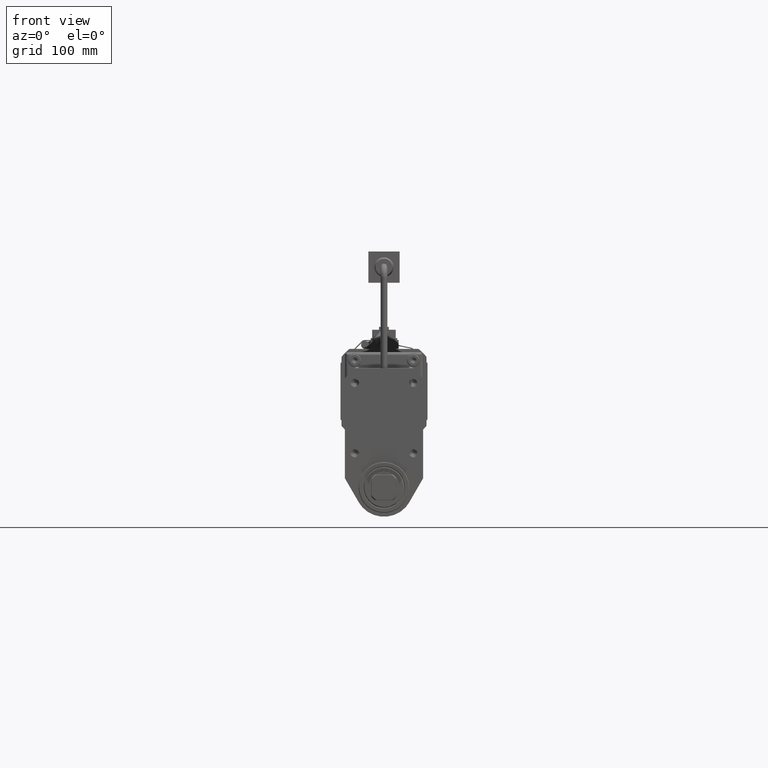
[diagram: clean part render]
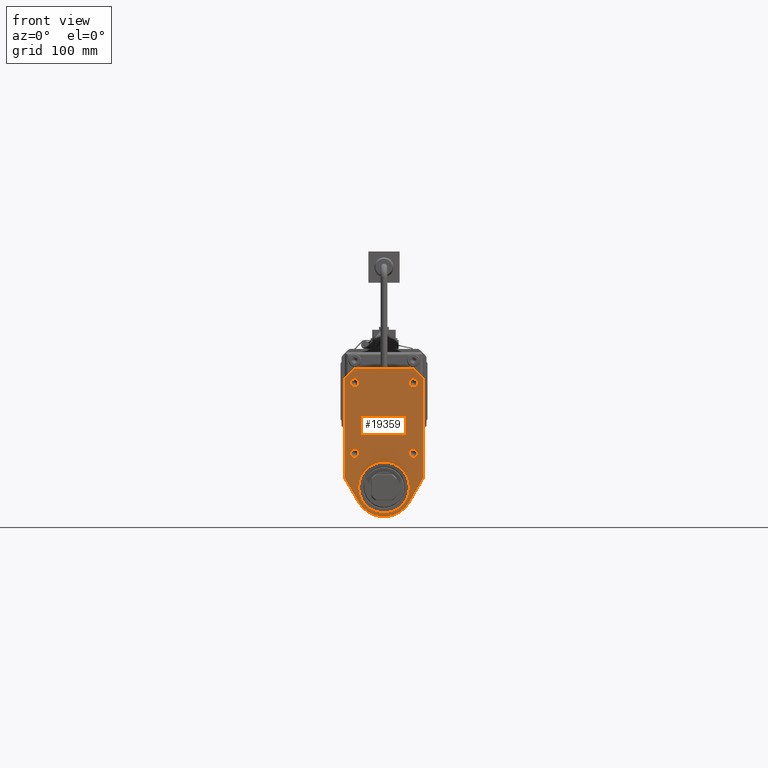
[diagram: same view with one face highlighted and labeled with its STEP entity id]
A machine part, front view. The second image highlights one B-rep face of the part: STEP entity #19359.
In plain terms, the highlighted planar face has unit normal (0, -1, 0).
Its self-contained STEP definition (entity closure, byte-faithful):
#221=PLANE('',#20762);
#765=FACE_BOUND('',#2767,.T.);
#766=FACE_BOUND('',#2768,.T.);
#767=FACE_BOUND('',#2769,.T.);
#768=FACE_BOUND('',#2770,.T.);
#769=FACE_BOUND('',#2771,.T.);
#1633=FACE_OUTER_BOUND('',#2766,.T.);
#2766=EDGE_LOOP('',(#14398,#14399,#14400,#14401,#14402,#14403,#14404,#14405));
#2767=EDGE_LOOP('',(#14406));
#2768=EDGE_LOOP('',(#14407));
#2769=EDGE_LOOP('',(#14408));
#2770=EDGE_LOOP('',(#14409));
#2771=EDGE_LOOP('',(#14410));
#3866=CIRCLE('',#20706,4.25);
#3868=CIRCLE('',#20709,4.25);
#3870=CIRCLE('',#20712,4.25);
#3872=CIRCLE('',#20715,4.25);
#3890=CIRCLE('',#20743,26.);
#3892=CIRCLE('',#20761,30.);
#4801=LINE('',#30473,#6559);
#4804=LINE('',#30478,#6562);
#4806=LINE('',#30483,#6564);
#4808=LINE('',#30487,#6566);
#4812=LINE('',#30494,#6570);
#4817=LINE('',#30504,#6575);
#4818=LINE('',#30507,#6576);
#6559=VECTOR('',#23643,10.);
#6562=VECTOR('',#23648,10.);
#6564=VECTOR('',#23652,10.);
#6566=VECTOR('',#23656,10.);
#6570=VECTOR('',#23664,10.);
#6575=VECTOR('',#23677,10.);
#6576=VECTOR('',#23682,10.);
#8477=VERTEX_POINT('',#30348);
#8479=VERTEX_POINT('',#30354);
#8481=VERTEX_POINT('',#30360);
#8483=VERTEX_POINT('',#30366);
#8515=VERTEX_POINT('',#30459);
#8516=VERTEX_POINT('',#30470);
#8517=VERTEX_POINT('',#30472);
#8518=VERTEX_POINT('',#30476);
#8519=VERTEX_POINT('',#30480);
#8520=VERTEX_POINT('',#30482);
#8521=VERTEX_POINT('',#30486);
#8522=VERTEX_POINT('',#30493);
#8523=VERTEX_POINT('',#30502);
#10626=EDGE_CURVE('',#8477,#8477,#3866,.T.);
#10629=EDGE_CURVE('',#8479,#8479,#3868,.T.);
#10632=EDGE_CURVE('',#8481,#8481,#3870,.T.);
#10635=EDGE_CURVE('',#8483,#8483,#3872,.T.);
#10674=EDGE_CURVE('',#8515,#8515,#3890,.T.);
#10681=EDGE_CURVE('',#8516,#8517,#4801,.T.);
#10684=EDGE_CURVE('',#8516,#8518,#4804,.T.);
#10686=EDGE_CURVE('',#8519,#8520,#4806,.T.);
#10688=EDGE_CURVE('',#8521,#8520,#4808,.T.);
#10692=EDGE_CURVE('',#8522,#8521,#4812,.T.);
#10697=EDGE_CURVE('',#8518,#8523,#4817,.T.);
#10698=EDGE_CURVE('',#8519,#8517,#4818,.T.);
#10701=EDGE_CURVE('',#8523,#8522,#3892,.T.);
#14398=ORIENTED_EDGE('',*,*,#10681,.F.);
#14399=ORIENTED_EDGE('',*,*,#10684,.T.);
#14400=ORIENTED_EDGE('',*,*,#10697,.T.);
#14401=ORIENTED_EDGE('',*,*,#10701,.T.);
#14402=ORIENTED_EDGE('',*,*,#10692,.T.);
#14403=ORIENTED_EDGE('',*,*,#10688,.T.);
#14404=ORIENTED_EDGE('',*,*,#10686,.F.);
#14405=ORIENTED_EDGE('',*,*,#10698,.T.);
#14406=ORIENTED_EDGE('',*,*,#10626,.T.);
#14407=ORIENTED_EDGE('',*,*,#10629,.T.);
#14408=ORIENTED_EDGE('',*,*,#10632,.T.);
#14409=ORIENTED_EDGE('',*,*,#10635,.T.);
#14410=ORIENTED_EDGE('',*,*,#10674,.T.);
#19359=ADVANCED_FACE('',(#1633,#765,#766,#767,#768,#769),#221,.T.);
#20706=AXIS2_PLACEMENT_3D('',#30349,#23531,#23532);
#20709=AXIS2_PLACEMENT_3D('',#30355,#23538,#23539);
#20712=AXIS2_PLACEMENT_3D('',#30361,#23545,#23546);
#20715=AXIS2_PLACEMENT_3D('',#30367,#23552,#23553);
#20743=AXIS2_PLACEMENT_3D('',#30460,#23627,#23628);
#20761=AXIS2_PLACEMENT_3D('',#30512,#23688,#23689);
#20762=AXIS2_PLACEMENT_3D('',#30513,#23690,#23691);
#23531=DIRECTION('center_axis',(-2.7315743099109E-16,1.,0.));
#23532=DIRECTION('ref_axis',(1.,2.7315743099109E-16,0.));
#23538=DIRECTION('center_axis',(-2.7315743099109E-16,1.,0.));
#23539=DIRECTION('ref_axis',(1.,2.7315743099109E-16,0.));
#23545=DIRECTION('center_axis',(-2.7315743099109E-16,1.,0.));
#23546=DIRECTION('ref_axis',(1.,2.7315743099109E-16,0.));
#23552=DIRECTION('center_axis',(-2.7315743099109E-16,1.,0.));
#23553=DIRECTION('ref_axis',(1.,2.7315743099109E-16,0.));
#23627=DIRECTION('center_axis',(-2.7315743099109E-16,1.,0.));
#23628=DIRECTION('ref_axis',(1.,2.7315743099109E-16,0.));
#23643=DIRECTION('',(0.707106781186547,1.93151471785296E-16,0.707106781186548));
#23648=DIRECTION('',(0.,0.,-1.));
#23652=DIRECTION('',(0.707106781186548,1.93151471785296E-16,-0.707106781186548));
#23656=DIRECTION('',(0.,0.,1.));
#23664=DIRECTION('',(0.5,1.36578715495545E-16,0.866025403784439));
#23677=DIRECTION('',(0.5,1.36578715495545E-16,-0.866025403784439));
#23682=DIRECTION('',(-1.,-2.7315743099109E-16,-5.08869889019998E-16));
#23688=DIRECTION('center_axis',(2.7315743099109E-16,-1.,0.));
#23689=DIRECTION('ref_axis',(0.866025403784439,2.9302288554416E-16,0.5));
#23690=DIRECTION('center_axis',(2.7315743099109E-16,-1.,0.));
#23691=DIRECTION('ref_axis',(0.,0.,-1.));
#30348=CARTESIAN_POINT('',(25.75,4.66293670342566E-14,35.));
#30349=CARTESIAN_POINT('Origin',(30.,4.88498130835069E-14,35.));
#30354=CARTESIAN_POINT('',(-34.25,3.10862446895044E-14,107.));
#30355=CARTESIAN_POINT('Origin',(-30.,3.33066907387547E-14,107.));
#30360=CARTESIAN_POINT('',(-34.25,3.10862446895044E-14,35.));
#30361=CARTESIAN_POINT('Origin',(-30.,3.33066907387547E-14,35.));
#30366=CARTESIAN_POINT('',(25.75,4.66293670342566E-14,107.));
#30367=CARTESIAN_POINT('Origin',(30.,4.88498130835069E-14,107.));
#30459=CARTESIAN_POINT('',(26.,1.33226762955019E-14,-3.18408167778312E-15));
#30460=CARTESIAN_POINT('Origin',(-3.673379795321E-15,8.88178419700125E-15,
0.));
#30470=CARTESIAN_POINT('',(-40.,3.00473174090199E-14,112.));
#30472=CARTESIAN_POINT('',(-30.,3.27788917189308E-14,122.));
#30473=CARTESIAN_POINT('',(-93.,1.55699735664922E-14,59.));
#30476=CARTESIAN_POINT('',(-40.,3.00473174090199E-14,9.2820323027551));
#30478=CARTESIAN_POINT('',(-40.,3.00473174090199E-14,61.));
#30480=CARTESIAN_POINT('',(30.,4.91683375783962E-14,122.));
#30482=CARTESIAN_POINT('',(40.,5.18999118883072E-14,112.));
#30483=CARTESIAN_POINT('',(18.,4.58904484065032E-14,134.));
#30486=CARTESIAN_POINT('',(40.,5.18999118883072E-14,9.2820323027551));
#30487=CARTESIAN_POINT('',(40.,5.18999118883072E-14,4.64101615137755));
#30493=CARTESIAN_POINT('',(25.9807621135332,4.80704528827869E-14,-15.));
#30494=CARTESIAN_POINT('',(7.23076211353317,4.2948751051704E-14,-47.4759526419164));
#30502=CARTESIAN_POINT('',(-25.9807621135332,3.38767764145402E-14,-15.));
#30504=CARTESIAN_POINT('',(-51.7403810567666,2.68403450806971E-14,29.616968793294));
#30507=CARTESIAN_POINT('',(-55.,2.59499559441536E-14,122.));
#30512=CARTESIAN_POINT('Origin',(-3.67337979532101E-15,5.07530525542926E-14,
0.));
#30513=CARTESIAN_POINT('Origin',(-150.,-1.23259516440769E-31,0.));